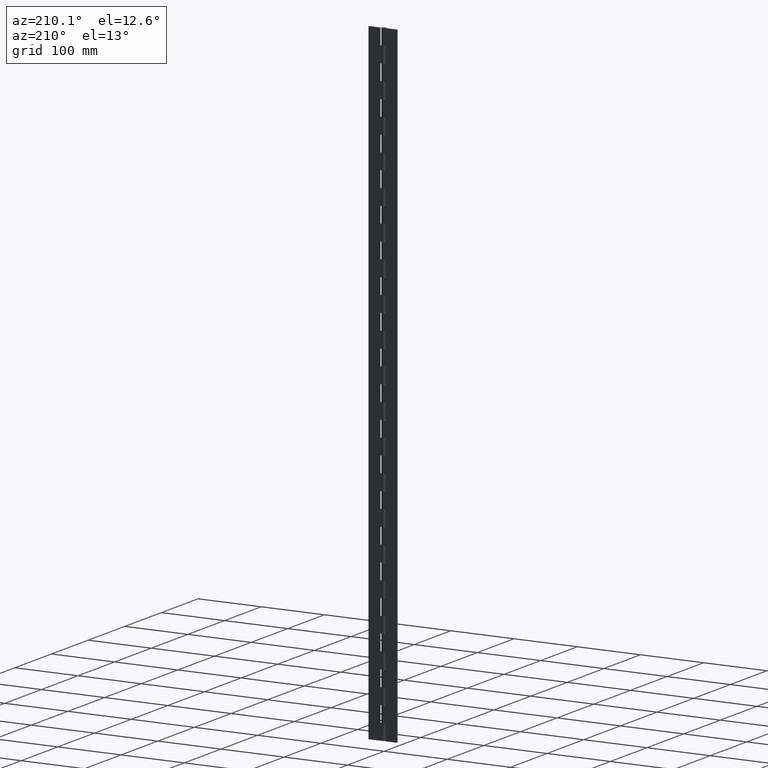
[diagram: clean part render]
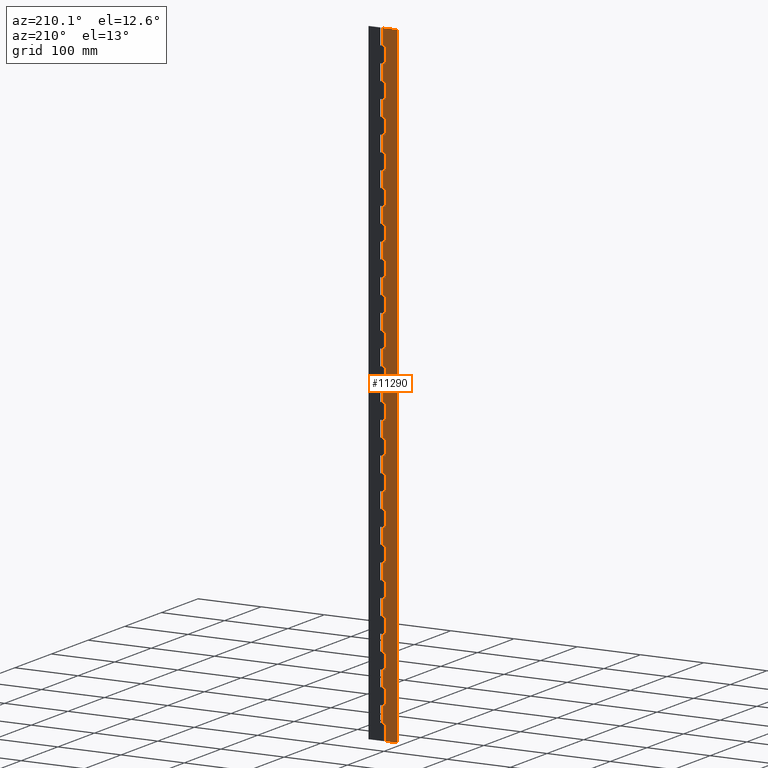
[diagram: same view with one face highlighted and labeled with its STEP entity id]
A machine part, auxiliary view. The second image highlights one B-rep face of the part: STEP entity #11290.
In plain terms, the highlighted face is a freeform B-spline surface patch.
Its self-contained STEP definition (entity closure, byte-faithful):
#5880=CARTESIAN_POINT('',(0.012942154702017,3.349975000001005,950.0));
#5881=VERTEX_POINT('',#5880);
#5901=CARTESIAN_POINT('',(-4.299995000000000,3.349975000001005,950.0));
#5902=VERTEX_POINT('',#5901);
#5903=CARTESIAN_POINT('',(-4.299995000000000,3.349975000001005,950.0));
#5904=CARTESIAN_POINT('',(0.012942154702017,3.349975000001005,950.0));
#5905=QUASI_UNIFORM_CURVE('',1,(#5903,#5904),.UNSPECIFIED.,.F.,.U.);
#5906=EDGE_CURVE('',#5902,#5881,#5905,.T.);
#5956=CARTESIAN_POINT('',(0.012942154702017,3.349975000001005,975.0));
#5957=VERTEX_POINT('',#5956);
#6014=CARTESIAN_POINT('',(-4.299995000000000,3.349975000001005,975.0));
#6015=VERTEX_POINT('',#6014);
#6021=CARTESIAN_POINT('',(0.012942154702017,3.349975000001005,975.0));
#6022=CARTESIAN_POINT('',(-4.299995000000000,3.349975000001005,975.0));
#6023=QUASI_UNIFORM_CURVE('',1,(#6021,#6022),.UNSPECIFIED.,.F.,.U.);
#6024=EDGE_CURVE('',#5957,#6015,#6023,.T.);
#6040=CARTESIAN_POINT('',(-4.299995000000000,3.349975000001005,975.0));
#6041=CARTESIAN_POINT('',(-4.299995000000000,3.349975000001005,950.0));
#6042=QUASI_UNIFORM_CURVE('',1,(#6040,#6041),.UNSPECIFIED.,.F.,.U.);
#6043=EDGE_CURVE('',#6015,#5902,#6042,.T.);
#6056=CARTESIAN_POINT('',(0.012942154702017,3.349975000001005,900.0));
#6057=VERTEX_POINT('',#6056);
#6077=CARTESIAN_POINT('',(-4.299995000000000,3.349975000001005,900.0));
#6078=VERTEX_POINT('',#6077);
#6079=CARTESIAN_POINT('',(-4.299995000000000,3.349975000001005,900.0));
#6080=CARTESIAN_POINT('',(0.012942154702017,3.349975000001005,900.0));
#6081=QUASI_UNIFORM_CURVE('',1,(#6079,#6080),.UNSPECIFIED.,.F.,.U.);
#6082=EDGE_CURVE('',#6078,#6057,#6081,.T.);
#6132=CARTESIAN_POINT('',(0.012942154702017,3.349975000001005,925.0));
#6133=VERTEX_POINT('',#6132);
#6190=CARTESIAN_POINT('',(-4.299995000000000,3.349975000001005,925.0));
#6191=VERTEX_POINT('',#6190);
#6197=CARTESIAN_POINT('',(0.012942154702017,3.349975000001005,925.0));
#6198=CARTESIAN_POINT('',(-4.299995000000000,3.349975000001005,925.0));
#6199=QUASI_UNIFORM_CURVE('',1,(#6197,#6198),.UNSPECIFIED.,.F.,.U.);
#6200=EDGE_CURVE('',#6133,#6191,#6199,.T.);
#6216=CARTESIAN_POINT('',(-4.299995000000000,3.349975000001005,925.0));
#6217=CARTESIAN_POINT('',(-4.299995000000000,3.349975000001005,900.0));
#6218=QUASI_UNIFORM_CURVE('',1,(#6216,#6217),.UNSPECIFIED.,.F.,.U.);
#6219=EDGE_CURVE('',#6191,#6078,#6218,.T.);
#6232=CARTESIAN_POINT('',(0.012942154702017,3.349975000001005,850.0));
#6233=VERTEX_POINT('',#6232);
#6253=CARTESIAN_POINT('',(-4.299995000000000,3.349975000001005,850.0));
#6254=VERTEX_POINT('',#6253);
#6255=CARTESIAN_POINT('',(-4.299995000000000,3.349975000001005,850.0));
#6256=CARTESIAN_POINT('',(0.012942154702017,3.349975000001005,850.0));
#6257=QUASI_UNIFORM_CURVE('',1,(#6255,#6256),.UNSPECIFIED.,.F.,.U.);
#6258=EDGE_CURVE('',#6254,#6233,#6257,.T.);
#6308=CARTESIAN_POINT('',(0.012942154702017,3.349975000001005,875.0));
#6309=VERTEX_POINT('',#6308);
#6366=CARTESIAN_POINT('',(-4.299995000000000,3.349975000001005,875.0));
#6367=VERTEX_POINT('',#6366);
#6373=CARTESIAN_POINT('',(0.012942154702017,3.349975000001005,875.0));
#6374=CARTESIAN_POINT('',(-4.299995000000000,3.349975000001005,875.0));
#6375=QUASI_UNIFORM_CURVE('',1,(#6373,#6374),.UNSPECIFIED.,.F.,.U.);
#6376=EDGE_CURVE('',#6309,#6367,#6375,.T.);
#6392=CARTESIAN_POINT('',(-4.299995000000000,3.349975000001005,875.0));
#6393=CARTESIAN_POINT('',(-4.299995000000000,3.349975000001005,850.0));
#6394=QUASI_UNIFORM_CURVE('',1,(#6392,#6393),.UNSPECIFIED.,.F.,.U.);
#6395=EDGE_CURVE('',#6367,#6254,#6394,.T.);
#6408=CARTESIAN_POINT('',(0.012942154702017,3.349975000001005,800.0));
#6409=VERTEX_POINT('',#6408);
#6429=CARTESIAN_POINT('',(-4.299995000000000,3.349975000001005,800.0));
#6430=VERTEX_POINT('',#6429);
#6431=CARTESIAN_POINT('',(-4.299995000000000,3.349975000001005,800.0));
#6432=CARTESIAN_POINT('',(0.012942154702017,3.349975000001005,800.0));
#6433=QUASI_UNIFORM_CURVE('',1,(#6431,#6432),.UNSPECIFIED.,.F.,.U.);
#6434=EDGE_CURVE('',#6430,#6409,#6433,.T.);
#6484=CARTESIAN_POINT('',(0.012942154702017,3.349975000001005,825.0));
#6485=VERTEX_POINT('',#6484);
#6542=CARTESIAN_POINT('',(-4.299995000000000,3.349975000001005,825.0));
#6543=VERTEX_POINT('',#6542);
#6549=CARTESIAN_POINT('',(0.012942154702017,3.349975000001005,825.0));
#6550=CARTESIAN_POINT('',(-4.299995000000000,3.349975000001005,825.0));
#6551=QUASI_UNIFORM_CURVE('',1,(#6549,#6550),.UNSPECIFIED.,.F.,.U.);
#6552=EDGE_CURVE('',#6485,#6543,#6551,.T.);
#6568=CARTESIAN_POINT('',(-4.299995000000000,3.349975000001005,825.0));
#6569=CARTESIAN_POINT('',(-4.299995000000000,3.349975000001005,800.0));
#6570=QUASI_UNIFORM_CURVE('',1,(#6568,#6569),.UNSPECIFIED.,.F.,.U.);
#6571=EDGE_CURVE('',#6543,#6430,#6570,.T.);
#6584=CARTESIAN_POINT('',(0.012942154702017,3.349975000001005,750.0));
#6585=VERTEX_POINT('',#6584);
#6605=CARTESIAN_POINT('',(-4.299995000000000,3.349975000001005,750.0));
#6606=VERTEX_POINT('',#6605);
#6607=CARTESIAN_POINT('',(-4.299995000000000,3.349975000001005,750.0));
#6608=CARTESIAN_POINT('',(0.012942154702017,3.349975000001005,750.0));
#6609=QUASI_UNIFORM_CURVE('',1,(#6607,#6608),.UNSPECIFIED.,.F.,.U.);
#6610=EDGE_CURVE('',#6606,#6585,#6609,.T.);
#6660=CARTESIAN_POINT('',(0.012942154702017,3.349975000001005,775.0));
#6661=VERTEX_POINT('',#6660);
#6718=CARTESIAN_POINT('',(-4.299995000000000,3.349975000001005,775.0));
#6719=VERTEX_POINT('',#6718);
#6725=CARTESIAN_POINT('',(0.012942154702017,3.349975000001005,775.0));
#6726=CARTESIAN_POINT('',(-4.299995000000000,3.349975000001005,775.0));
#6727=QUASI_UNIFORM_CURVE('',1,(#6725,#6726),.UNSPECIFIED.,.F.,.U.);
#6728=EDGE_CURVE('',#6661,#6719,#6727,.T.);
#6744=CARTESIAN_POINT('',(-4.299995000000000,3.349975000001005,775.0));
#6745=CARTESIAN_POINT('',(-4.299995000000000,3.349975000001005,750.0));
#6746=QUASI_UNIFORM_CURVE('',1,(#6744,#6745),.UNSPECIFIED.,.F.,.U.);
#6747=EDGE_CURVE('',#6719,#6606,#6746,.T.);
#6760=CARTESIAN_POINT('',(0.012942154702017,3.349975000001005,700.0));
#6761=VERTEX_POINT('',#6760);
#6781=CARTESIAN_POINT('',(-4.299995000000000,3.349975000001005,700.0));
#6782=VERTEX_POINT('',#6781);
#6783=CARTESIAN_POINT('',(-4.299995000000000,3.349975000001005,700.0));
#6784=CARTESIAN_POINT('',(0.012942154702017,3.349975000001005,700.0));
#6785=QUASI_UNIFORM_CURVE('',1,(#6783,#6784),.UNSPECIFIED.,.F.,.U.);
#6786=EDGE_CURVE('',#6782,#6761,#6785,.T.);
#6836=CARTESIAN_POINT('',(0.012942154702017,3.349975000001005,725.0));
#6837=VERTEX_POINT('',#6836);
#6894=CARTESIAN_POINT('',(-4.299995000000000,3.349975000001005,725.0));
#6895=VERTEX_POINT('',#6894);
#6901=CARTESIAN_POINT('',(0.012942154702017,3.349975000001005,725.0));
#6902=CARTESIAN_POINT('',(-4.299995000000000,3.349975000001005,725.0));
#6903=QUASI_UNIFORM_CURVE('',1,(#6901,#6902),.UNSPECIFIED.,.F.,.U.);
#6904=EDGE_CURVE('',#6837,#6895,#6903,.T.);
#6920=CARTESIAN_POINT('',(-4.299995000000000,3.349975000001005,725.0));
#6921=CARTESIAN_POINT('',(-4.299995000000000,3.349975000001005,700.0));
#6922=QUASI_UNIFORM_CURVE('',1,(#6920,#6921),.UNSPECIFIED.,.F.,.U.);
#6923=EDGE_CURVE('',#6895,#6782,#6922,.T.);
#6936=CARTESIAN_POINT('',(0.012942154702017,3.349975000001005,650.0));
#6937=VERTEX_POINT('',#6936);
#6957=CARTESIAN_POINT('',(-4.299995000000000,3.349975000001005,650.0));
#6958=VERTEX_POINT('',#6957);
#6959=CARTESIAN_POINT('',(-4.299995000000000,3.349975000001005,650.0));
#6960=CARTESIAN_POINT('',(0.012942154702017,3.349975000001005,650.0));
#6961=QUASI_UNIFORM_CURVE('',1,(#6959,#6960),.UNSPECIFIED.,.F.,.U.);
#6962=EDGE_CURVE('',#6958,#6937,#6961,.T.);
#7012=CARTESIAN_POINT('',(0.012942154702017,3.349975000001005,675.0));
#7013=VERTEX_POINT('',#7012);
#7070=CARTESIAN_POINT('',(-4.299995000000000,3.349975000001005,675.0));
#7071=VERTEX_POINT('',#7070);
#7077=CARTESIAN_POINT('',(0.012942154702017,3.349975000001005,675.0));
#7078=CARTESIAN_POINT('',(-4.299995000000000,3.349975000001005,675.0));
#7079=QUASI_UNIFORM_CURVE('',1,(#7077,#7078),.UNSPECIFIED.,.F.,.U.);
#7080=EDGE_CURVE('',#7013,#7071,#7079,.T.);
#7096=CARTESIAN_POINT('',(-4.299995000000000,3.349975000001005,675.0));
#7097=CARTESIAN_POINT('',(-4.299995000000000,3.349975000001005,650.0));
#7098=QUASI_UNIFORM_CURVE('',1,(#7096,#7097),.UNSPECIFIED.,.F.,.U.);
#7099=EDGE_CURVE('',#7071,#6958,#7098,.T.);
#7112=CARTESIAN_POINT('',(0.012942154702017,3.349975000001005,600.0));
#7113=VERTEX_POINT('',#7112);
#7133=CARTESIAN_POINT('',(-4.299995000000000,3.349975000001005,600.0));
#7134=VERTEX_POINT('',#7133);
#7135=CARTESIAN_POINT('',(-4.299995000000000,3.349975000001005,600.0));
#7136=CARTESIAN_POINT('',(0.012942154702017,3.349975000001005,600.0));
#7137=QUASI_UNIFORM_CURVE('',1,(#7135,#7136),.UNSPECIFIED.,.F.,.U.);
#7138=EDGE_CURVE('',#7134,#7113,#7137,.T.);
#7188=CARTESIAN_POINT('',(0.012942154702017,3.349975000001005,625.0));
#7189=VERTEX_POINT('',#7188);
#7246=CARTESIAN_POINT('',(-4.299995000000000,3.349975000001005,625.0));
#7247=VERTEX_POINT('',#7246);
#7253=CARTESIAN_POINT('',(0.012942154702017,3.349975000001005,625.0));
#7254=CARTESIAN_POINT('',(-4.299995000000000,3.349975000001005,625.0));
#7255=QUASI_UNIFORM_CURVE('',1,(#7253,#7254),.UNSPECIFIED.,.F.,.U.);
#7256=EDGE_CURVE('',#7189,#7247,#7255,.T.);
#7272=CARTESIAN_POINT('',(-4.299995000000000,3.349975000001005,625.0));
#7273=CARTESIAN_POINT('',(-4.299995000000000,3.349975000001005,600.0));
#7274=QUASI_UNIFORM_CURVE('',1,(#7272,#7273),.UNSPECIFIED.,.F.,.U.);
#7275=EDGE_CURVE('',#7247,#7134,#7274,.T.);
#7288=CARTESIAN_POINT('',(0.012942154702017,3.349975000001005,550.0));
#7289=VERTEX_POINT('',#7288);
#7309=CARTESIAN_POINT('',(-4.299995000000000,3.349975000001005,550.0));
#7310=VERTEX_POINT('',#7309);
#7311=CARTESIAN_POINT('',(-4.299995000000000,3.349975000001005,550.0));
#7312=CARTESIAN_POINT('',(0.012942154702017,3.349975000001005,550.0));
#7313=QUASI_UNIFORM_CURVE('',1,(#7311,#7312),.UNSPECIFIED.,.F.,.U.);
#7314=EDGE_CURVE('',#7310,#7289,#7313,.T.);
#7364=CARTESIAN_POINT('',(0.012942154702017,3.349975000001005,575.0));
#7365=VERTEX_POINT('',#7364);
#7422=CARTESIAN_POINT('',(-4.299995000000000,3.349975000001005,575.0));
#7423=VERTEX_POINT('',#7422);
#7429=CARTESIAN_POINT('',(0.012942154702017,3.349975000001005,575.0));
#7430=CARTESIAN_POINT('',(-4.299995000000000,3.349975000001005,575.0));
#7431=QUASI_UNIFORM_CURVE('',1,(#7429,#7430),.UNSPECIFIED.,.F.,.U.);
#7432=EDGE_CURVE('',#7365,#7423,#7431,.T.);
#7448=CARTESIAN_POINT('',(-4.299995000000000,3.349975000001005,575.0));
#7449=CARTESIAN_POINT('',(-4.299995000000000,3.349975000001005,550.0));
#7450=QUASI_UNIFORM_CURVE('',1,(#7448,#7449),.UNSPECIFIED.,.F.,.U.);
#7451=EDGE_CURVE('',#7423,#7310,#7450,.T.);
#7464=CARTESIAN_POINT('',(0.012942154702017,3.349975000001005,500.0));
#7465=VERTEX_POINT('',#7464);
#7485=CARTESIAN_POINT('',(-4.299995000000000,3.349975000001005,500.0));
#7486=VERTEX_POINT('',#7485);
#7487=CARTESIAN_POINT('',(-4.299995000000000,3.349975000001005,500.0));
#7488=CARTESIAN_POINT('',(0.012942154702017,3.349975000001005,500.0));
#7489=QUASI_UNIFORM_CURVE('',1,(#7487,#7488),.UNSPECIFIED.,.F.,.U.);
#7490=EDGE_CURVE('',#7486,#7465,#7489,.T.);
#7540=CARTESIAN_POINT('',(0.012942154702017,3.349975000001005,525.0));
#7541=VERTEX_POINT('',#7540);
#7598=CARTESIAN_POINT('',(-4.299995000000000,3.349975000001005,525.0));
#7599=VERTEX_POINT('',#7598);
#7605=CARTESIAN_POINT('',(0.012942154702017,3.349975000001005,525.0));
#7606=CARTESIAN_POINT('',(-4.299995000000000,3.349975000001005,525.0));
#7607=QUASI_UNIFORM_CURVE('',1,(#7605,#7606),.UNSPECIFIED.,.F.,.U.);
#7608=EDGE_CURVE('',#7541,#7599,#7607,.T.);
#7624=CARTESIAN_POINT('',(-4.299995000000000,3.349975000001005,525.0));
#7625=CARTESIAN_POINT('',(-4.299995000000000,3.349975000001005,500.0));
#7626=QUASI_UNIFORM_CURVE('',1,(#7624,#7625),.UNSPECIFIED.,.F.,.U.);
#7627=EDGE_CURVE('',#7599,#7486,#7626,.T.);
#7640=CARTESIAN_POINT('',(0.012942154702017,3.349975000001005,450.0));
#7641=VERTEX_POINT('',#7640);
#7661=CARTESIAN_POINT('',(-4.299995000000000,3.349975000001005,450.0));
#7662=VERTEX_POINT('',#7661);
#7663=CARTESIAN_POINT('',(-4.299995000000000,3.349975000001005,450.0));
#7664=CARTESIAN_POINT('',(0.012942154702017,3.349975000001005,450.0));
#7665=QUASI_UNIFORM_CURVE('',1,(#7663,#7664),.UNSPECIFIED.,.F.,.U.);
#7666=EDGE_CURVE('',#7662,#7641,#7665,.T.);
#7716=CARTESIAN_POINT('',(0.012942154702017,3.349975000001005,475.0));
#7717=VERTEX_POINT('',#7716);
#7774=CARTESIAN_POINT('',(-4.299995000000000,3.349975000001005,475.0));
#7775=VERTEX_POINT('',#7774);
#7781=CARTESIAN_POINT('',(0.012942154702017,3.349975000001005,475.0));
#7782=CARTESIAN_POINT('',(-4.299995000000000,3.349975000001005,475.0));
#7783=QUASI_UNIFORM_CURVE('',1,(#7781,#7782),.UNSPECIFIED.,.F.,.U.);
#7784=EDGE_CURVE('',#7717,#7775,#7783,.T.);
#7800=CARTESIAN_POINT('',(-4.299995000000000,3.349975000001005,475.0));
#7801=CARTESIAN_POINT('',(-4.299995000000000,3.349975000001005,450.0));
#7802=QUASI_UNIFORM_CURVE('',1,(#7800,#7801),.UNSPECIFIED.,.F.,.U.);
#7803=EDGE_CURVE('',#7775,#7662,#7802,.T.);
#7816=CARTESIAN_POINT('',(0.012942154702017,3.349975000001005,400.0));
#7817=VERTEX_POINT('',#7816);
#7837=CARTESIAN_POINT('',(-4.299995000000000,3.349975000001005,400.0));
#7838=VERTEX_POINT('',#7837);
#7839=CARTESIAN_POINT('',(-4.299995000000000,3.349975000001005,400.0));
#7840=CARTESIAN_POINT('',(0.012942154702017,3.349975000001005,400.0));
#7841=QUASI_UNIFORM_CURVE('',1,(#7839,#7840),.UNSPECIFIED.,.F.,.U.);
#7842=EDGE_CURVE('',#7838,#7817,#7841,.T.);
#7892=CARTESIAN_POINT('',(0.012942154702017,3.349975000001005,425.0));
#7893=VERTEX_POINT('',#7892);
#7950=CARTESIAN_POINT('',(-4.299995000000000,3.349975000001005,425.0));
#7951=VERTEX_POINT('',#7950);
#7957=CARTESIAN_POINT('',(0.012942154702017,3.349975000001005,425.0));
#7958=CARTESIAN_POINT('',(-4.299995000000000,3.349975000001005,425.0));
#7959=QUASI_UNIFORM_CURVE('',1,(#7957,#7958),.UNSPECIFIED.,.F.,.U.);
#7960=EDGE_CURVE('',#7893,#7951,#7959,.T.);
#7976=CARTESIAN_POINT('',(-4.299995000000000,3.349975000001005,425.0));
#7977=CARTESIAN_POINT('',(-4.299995000000000,3.349975000001005,400.0));
#7978=QUASI_UNIFORM_CURVE('',1,(#7976,#7977),.UNSPECIFIED.,.F.,.U.);
#7979=EDGE_CURVE('',#7951,#7838,#7978,.T.);
#7992=CARTESIAN_POINT('',(0.012942154702017,3.349975000001005,350.0));
#7993=VERTEX_POINT('',#7992);
#8013=CARTESIAN_POINT('',(-4.299995000000000,3.349975000001005,350.0));
#8014=VERTEX_POINT('',#8013);
#8015=CARTESIAN_POINT('',(-4.299995000000000,3.349975000001005,350.0));
#8016=CARTESIAN_POINT('',(0.012942154702017,3.349975000001005,350.0));
#8017=QUASI_UNIFORM_CURVE('',1,(#8015,#8016),.UNSPECIFIED.,.F.,.U.);
#8018=EDGE_CURVE('',#8014,#7993,#8017,.T.);
#8068=CARTESIAN_POINT('',(0.012942154702017,3.349975000001005,375.0));
#8069=VERTEX_POINT('',#8068);
#8126=CARTESIAN_POINT('',(-4.299995000000000,3.349975000001005,375.0));
#8127=VERTEX_POINT('',#8126);
#8133=CARTESIAN_POINT('',(0.012942154702017,3.349975000001005,375.0));
#8134=CARTESIAN_POINT('',(-4.299995000000000,3.349975000001005,375.0));
#8135=QUASI_UNIFORM_CURVE('',1,(#8133,#8134),.UNSPECIFIED.,.F.,.U.);
#8136=EDGE_CURVE('',#8069,#8127,#8135,.T.);
#8152=CARTESIAN_POINT('',(-4.299995000000000,3.349975000001005,375.0));
#8153=CARTESIAN_POINT('',(-4.299995000000000,3.349975000001005,350.0));
#8154=QUASI_UNIFORM_CURVE('',1,(#8152,#8153),.UNSPECIFIED.,.F.,.U.);
#8155=EDGE_CURVE('',#8127,#8014,#8154,.T.);
#8168=CARTESIAN_POINT('',(0.012942154702017,3.349975000001005,300.0));
#8169=VERTEX_POINT('',#8168);
#8189=CARTESIAN_POINT('',(-4.299995000000000,3.349975000001005,300.0));
#8190=VERTEX_POINT('',#8189);
#8191=CARTESIAN_POINT('',(-4.299995000000000,3.349975000001005,300.0));
#8192=CARTESIAN_POINT('',(0.012942154702017,3.349975000001005,300.0));
#8193=QUASI_UNIFORM_CURVE('',1,(#8191,#8192),.UNSPECIFIED.,.F.,.U.);
#8194=EDGE_CURVE('',#8190,#8169,#8193,.T.);
#8244=CARTESIAN_POINT('',(0.012942154702017,3.349975000001005,325.0));
#8245=VERTEX_POINT('',#8244);
#8302=CARTESIAN_POINT('',(-4.299995000000000,3.349975000001005,325.0));
#8303=VERTEX_POINT('',#8302);
#8309=CARTESIAN_POINT('',(0.012942154702017,3.349975000001005,325.0));
#8310=CARTESIAN_POINT('',(-4.299995000000000,3.349975000001005,325.0));
#8311=QUASI_UNIFORM_CURVE('',1,(#8309,#8310),.UNSPECIFIED.,.F.,.U.);
#8312=EDGE_CURVE('',#8245,#8303,#8311,.T.);
#8328=CARTESIAN_POINT('',(-4.299995000000000,3.349975000001005,325.0));
#8329=CARTESIAN_POINT('',(-4.299995000000000,3.349975000001005,300.0));
#8330=QUASI_UNIFORM_CURVE('',1,(#8328,#8329),.UNSPECIFIED.,.F.,.U.);
#8331=EDGE_CURVE('',#8303,#8190,#8330,.T.);
#8344=CARTESIAN_POINT('',(0.012942154702017,3.349975000001005,250.0));
#8345=VERTEX_POINT('',#8344);
#8365=CARTESIAN_POINT('',(-4.299995000000000,3.349975000001005,250.0));
#8366=VERTEX_POINT('',#8365);
#8367=CARTESIAN_POINT('',(-4.299995000000000,3.349975000001005,250.0));
#8368=CARTESIAN_POINT('',(0.012942154702017,3.349975000001005,250.0));
#8369=QUASI_UNIFORM_CURVE('',1,(#8367,#8368),.UNSPECIFIED.,.F.,.U.);
#8370=EDGE_CURVE('',#8366,#8345,#8369,.T.);
#8420=CARTESIAN_POINT('',(0.012942154702017,3.349975000001005,275.0));
#8421=VERTEX_POINT('',#8420);
#8478=CARTESIAN_POINT('',(-4.299995000000000,3.349975000001005,275.0));
#8479=VERTEX_POINT('',#8478);
#8485=CARTESIAN_POINT('',(0.012942154702017,3.349975000001005,275.0));
#8486=CARTESIAN_POINT('',(-4.299995000000000,3.349975000001005,275.0));
#8487=QUASI_UNIFORM_CURVE('',1,(#8485,#8486),.UNSPECIFIED.,.F.,.U.);
#8488=EDGE_CURVE('',#8421,#8479,#8487,.T.);
#8504=CARTESIAN_POINT('',(-4.299995000000000,3.349975000001005,275.0));
#8505=CARTESIAN_POINT('',(-4.299995000000000,3.349975000001005,250.0));
#8506=QUASI_UNIFORM_CURVE('',1,(#8504,#8505),.UNSPECIFIED.,.F.,.U.);
#8507=EDGE_CURVE('',#8479,#8366,#8506,.T.);
#8520=CARTESIAN_POINT('',(0.012942154702017,3.349975000001005,200.0));
#8521=VERTEX_POINT('',#8520);
#8541=CARTESIAN_POINT('',(-4.299995000000000,3.349975000001005,200.0));
#8542=VERTEX_POINT('',#8541);
#8543=CARTESIAN_POINT('',(-4.299995000000000,3.349975000001005,200.0));
#8544=CARTESIAN_POINT('',(0.012942154702017,3.349975000001005,200.0));
#8545=QUASI_UNIFORM_CURVE('',1,(#8543,#8544),.UNSPECIFIED.,.F.,.U.);
#8546=EDGE_CURVE('',#8542,#8521,#8545,.T.);
#8596=CARTESIAN_POINT('',(0.012942154702017,3.349975000001005,225.0));
#8597=VERTEX_POINT('',#8596);
#8654=CARTESIAN_POINT('',(-4.299995000000000,3.349975000001005,225.0));
#8655=VERTEX_POINT('',#8654);
#8661=CARTESIAN_POINT('',(0.012942154702017,3.349975000001005,225.0));
#8662=CARTESIAN_POINT('',(-4.299995000000000,3.349975000001005,225.0));
#8663=QUASI_UNIFORM_CURVE('',1,(#8661,#8662),.UNSPECIFIED.,.F.,.U.);
#8664=EDGE_CURVE('',#8597,#8655,#8663,.T.);
#8680=CARTESIAN_POINT('',(-4.299995000000000,3.349975000001005,225.0));
#8681=CARTESIAN_POINT('',(-4.299995000000000,3.349975000001005,200.0));
#8682=QUASI_UNIFORM_CURVE('',1,(#8680,#8681),.UNSPECIFIED.,.F.,.U.);
#8683=EDGE_CURVE('',#8655,#8542,#8682,.T.);
#8696=CARTESIAN_POINT('',(0.012942154702017,3.349975000001005,150.0));
#8697=VERTEX_POINT('',#8696);
#8717=CARTESIAN_POINT('',(-4.299995000000000,3.349975000001005,150.0));
#8718=VERTEX_POINT('',#8717);
#8719=CARTESIAN_POINT('',(-4.299995000000000,3.349975000001005,150.0));
#8720=CARTESIAN_POINT('',(0.012942154702017,3.349975000001005,150.0));
#8721=QUASI_UNIFORM_CURVE('',1,(#8719,#8720),.UNSPECIFIED.,.F.,.U.);
#8722=EDGE_CURVE('',#8718,#8697,#8721,.T.);
#8772=CARTESIAN_POINT('',(0.012942154702017,3.349975000001005,175.0));
#8773=VERTEX_POINT('',#8772);
#8830=CARTESIAN_POINT('',(-4.299995000000000,3.349975000001005,175.0));
#8831=VERTEX_POINT('',#8830);
#8837=CARTESIAN_POINT('',(0.012942154702017,3.349975000001005,175.0));
#8838=CARTESIAN_POINT('',(-4.299995000000000,3.349975000001005,175.0));
#8839=QUASI_UNIFORM_CURVE('',1,(#8837,#8838),.UNSPECIFIED.,.F.,.U.);
#8840=EDGE_CURVE('',#8773,#8831,#8839,.T.);
#8856=CARTESIAN_POINT('',(-4.299995000000000,3.349975000001005,175.0));
#8857=CARTESIAN_POINT('',(-4.299995000000000,3.349975000001005,150.0));
#8858=QUASI_UNIFORM_CURVE('',1,(#8856,#8857),.UNSPECIFIED.,.F.,.U.);
#8859=EDGE_CURVE('',#8831,#8718,#8858,.T.);
#8872=CARTESIAN_POINT('',(0.012942154702017,3.349975000001005,100.0));
#8873=VERTEX_POINT('',#8872);
#8893=CARTESIAN_POINT('',(-4.299995000000000,3.349975000001005,100.0));
#8894=VERTEX_POINT('',#8893);
#8895=CARTESIAN_POINT('',(-4.299995000000000,3.349975000001005,100.0));
#8896=CARTESIAN_POINT('',(0.012942154702017,3.349975000001005,100.0));
#8897=QUASI_UNIFORM_CURVE('',1,(#8895,#8896),.UNSPECIFIED.,.F.,.U.);
#8898=EDGE_CURVE('',#8894,#8873,#8897,.T.);
#8948=CARTESIAN_POINT('',(0.012942154702017,3.349975000001005,125.0));
#8949=VERTEX_POINT('',#8948);
#9006=CARTESIAN_POINT('',(-4.299995000000000,3.349975000001005,125.0));
#9007=VERTEX_POINT('',#9006);
#9013=CARTESIAN_POINT('',(0.012942154702017,3.349975000001005,125.0));
#9014=CARTESIAN_POINT('',(-4.299995000000000,3.349975000001005,125.0));
#9015=QUASI_UNIFORM_CURVE('',1,(#9013,#9014),.UNSPECIFIED.,.F.,.U.);
#9016=EDGE_CURVE('',#8949,#9007,#9015,.T.);
#9032=CARTESIAN_POINT('',(-4.299995000000000,3.349975000001005,125.0));
#9033=CARTESIAN_POINT('',(-4.299995000000000,3.349975000001005,100.0));
#9034=QUASI_UNIFORM_CURVE('',1,(#9032,#9033),.UNSPECIFIED.,.F.,.U.);
#9035=EDGE_CURVE('',#9007,#8894,#9034,.T.);
#9048=CARTESIAN_POINT('',(0.012942154702017,3.349975000001005,50.0));
#9049=VERTEX_POINT('',#9048);
#9069=CARTESIAN_POINT('',(-4.299995000000000,3.349975000001005,50.0));
#9070=VERTEX_POINT('',#9069);
#9071=CARTESIAN_POINT('',(-4.299995000000000,3.349975000001005,50.0));
#9072=CARTESIAN_POINT('',(0.012942154702017,3.349975000001005,50.0));
#9073=QUASI_UNIFORM_CURVE('',1,(#9071,#9072),.UNSPECIFIED.,.F.,.U.);
#9074=EDGE_CURVE('',#9070,#9049,#9073,.T.);
#9124=CARTESIAN_POINT('',(0.012942154702017,3.349975000001005,75.0));
#9125=VERTEX_POINT('',#9124);
#9182=CARTESIAN_POINT('',(-4.299995000000000,3.349975000001005,75.0));
#9183=VERTEX_POINT('',#9182);
#9189=CARTESIAN_POINT('',(0.012942154702017,3.349975000001005,75.0));
#9190=CARTESIAN_POINT('',(-4.299995000000000,3.349975000001005,75.0));
#9191=QUASI_UNIFORM_CURVE('',1,(#9189,#9190),.UNSPECIFIED.,.F.,.U.);
#9192=EDGE_CURVE('',#9125,#9183,#9191,.T.);
#9208=CARTESIAN_POINT('',(-4.299995000000000,3.349975000001005,75.0));
#9209=CARTESIAN_POINT('',(-4.299995000000000,3.349975000001005,50.0));
#9210=QUASI_UNIFORM_CURVE('',1,(#9208,#9209),.UNSPECIFIED.,.F.,.U.);
#9211=EDGE_CURVE('',#9183,#9070,#9210,.T.);
#9231=CARTESIAN_POINT('',(-4.299995000000000,3.349975000001005,0.0));
#9232=VERTEX_POINT('',#9231);
#9238=CARTESIAN_POINT('',(-4.299995000000000,3.349975000001005,25.0));
#9239=VERTEX_POINT('',#9238);
#9240=CARTESIAN_POINT('',(-4.299995000000000,3.349975000001005,25.0));
#9241=CARTESIAN_POINT('',(-4.299995000000000,3.349975000001005,0.0));
#9242=QUASI_UNIFORM_CURVE('',1,(#9240,#9241),.UNSPECIFIED.,.F.,.U.);
#9243=EDGE_CURVE('',#9239,#9232,#9242,.T.);
#9258=CARTESIAN_POINT('',(0.012942154702017,3.349975000001005,25.0));
#9259=VERTEX_POINT('',#9258);
#9315=CARTESIAN_POINT('',(0.012942154702017,3.349975000001005,25.0));
#9316=CARTESIAN_POINT('',(-4.299995000000000,3.349975000001005,25.0));
#9317=QUASI_UNIFORM_CURVE('',1,(#9315,#9316),.UNSPECIFIED.,.F.,.U.);
#9318=EDGE_CURVE('',#9259,#9239,#9317,.T.);
#9330=CARTESIAN_POINT('',(0.012942154702017,3.349975000000995,999.999977999999940));
#9331=VERTEX_POINT('',#9330);
#9351=CARTESIAN_POINT('',(-22.500000000000000,3.349975000000995,999.999977999999940));
#9352=VERTEX_POINT('',#9351);
#9353=CARTESIAN_POINT('',(0.012942154702017,3.349975000000995,999.999977999999940));
#9354=CARTESIAN_POINT('',(-22.500000000000000,3.349975000000995,999.999977999999940));
#9355=QUASI_UNIFORM_CURVE('',1,(#9353,#9354),.UNSPECIFIED.,.F.,.U.);
#9356=EDGE_CURVE('',#9331,#9352,#9355,.T.);
#9406=CARTESIAN_POINT('',(-22.500000000000000,3.349975000000995,0.0));
#9407=VERTEX_POINT('',#9406);
#9421=CARTESIAN_POINT('',(-22.500000000000000,3.349975000000995,999.999977999999940));
#9422=CARTESIAN_POINT('',(-22.500000000000000,3.349975000000995,0.0));
#9423=QUASI_UNIFORM_CURVE('',1,(#9421,#9422),.UNSPECIFIED.,.F.,.U.);
#9424=EDGE_CURVE('',#9352,#9407,#9423,.T.);
#9441=CARTESIAN_POINT('',(-4.299995000000000,3.349975000001005,0.0));
#9442=CARTESIAN_POINT('',(-22.500000000000000,3.349975000000995,0.0));
#9443=QUASI_UNIFORM_CURVE('',1,(#9441,#9442),.UNSPECIFIED.,.F.,.U.);
#9444=EDGE_CURVE('',#9232,#9407,#9443,.T.);
#9527=CARTESIAN_POINT('',(0.012942154702017,3.349975000001005,50.0));
#9528=CARTESIAN_POINT('',(0.012942154702017,3.349975000001005,25.0));
#9529=QUASI_UNIFORM_CURVE('',1,(#9527,#9528),.UNSPECIFIED.,.F.,.U.);
#9530=EDGE_CURVE('',#9049,#9259,#9529,.T.);
#9613=CARTESIAN_POINT('',(0.012942154702017,3.349975000001005,100.0));
#9614=CARTESIAN_POINT('',(0.012942154702017,3.349975000001005,75.0));
#9615=QUASI_UNIFORM_CURVE('',1,(#9613,#9614),.UNSPECIFIED.,.F.,.U.);
#9616=EDGE_CURVE('',#8873,#9125,#9615,.T.);
#9699=CARTESIAN_POINT('',(0.012942154702017,3.349975000001005,150.0));
#9700=CARTESIAN_POINT('',(0.012942154702017,3.349975000001005,125.0));
#9701=QUASI_UNIFORM_CURVE('',1,(#9699,#9700),.UNSPECIFIED.,.F.,.U.);
#9702=EDGE_CURVE('',#8697,#8949,#9701,.T.);
#9785=CARTESIAN_POINT('',(0.012942154702017,3.349975000001005,200.0));
#9786=CARTESIAN_POINT('',(0.012942154702017,3.349975000001005,175.0));
#9787=QUASI_UNIFORM_CURVE('',1,(#9785,#9786),.UNSPECIFIED.,.F.,.U.);
#9788=EDGE_CURVE('',#8521,#8773,#9787,.T.);
#9871=CARTESIAN_POINT('',(0.012942154702017,3.349975000001005,250.0));
#9872=CARTESIAN_POINT('',(0.012942154702017,3.349975000001005,225.0));
#9873=QUASI_UNIFORM_CURVE('',1,(#9871,#9872),.UNSPECIFIED.,.F.,.U.);
#9874=EDGE_CURVE('',#8345,#8597,#9873,.T.);
#9957=CARTESIAN_POINT('',(0.012942154702017,3.349975000001005,300.0));
#9958=CARTESIAN_POINT('',(0.012942154702017,3.349975000001005,275.0));
#9959=QUASI_UNIFORM_CURVE('',1,(#9957,#9958),.UNSPECIFIED.,.F.,.U.);
#9960=EDGE_CURVE('',#8169,#8421,#9959,.T.);
#10043=CARTESIAN_POINT('',(0.012942154702017,3.349975000001005,350.0));
#10044=CARTESIAN_POINT('',(0.012942154702017,3.349975000001005,325.0));
#10045=QUASI_UNIFORM_CURVE('',1,(#10043,#10044),.UNSPECIFIED.,.F.,.U.);
#10046=EDGE_CURVE('',#7993,#8245,#10045,.T.);
#10129=CARTESIAN_POINT('',(0.012942154702017,3.349975000001005,400.0));
#10130=CARTESIAN_POINT('',(0.012942154702017,3.349975000001005,375.0));
#10131=QUASI_UNIFORM_CURVE('',1,(#10129,#10130),.UNSPECIFIED.,.F.,.U.);
#10132=EDGE_CURVE('',#7817,#8069,#10131,.T.);
#10215=CARTESIAN_POINT('',(0.012942154702017,3.349975000001005,450.0));
#10216=CARTESIAN_POINT('',(0.012942154702017,3.349975000001005,425.0));
#10217=QUASI_UNIFORM_CURVE('',1,(#10215,#10216),.UNSPECIFIED.,.F.,.U.);
#10218=EDGE_CURVE('',#7641,#7893,#10217,.T.);
#10301=CARTESIAN_POINT('',(0.012942154702017,3.349975000001005,500.0));
#10302=CARTESIAN_POINT('',(0.012942154702017,3.349975000001005,475.0));
#10303=QUASI_UNIFORM_CURVE('',1,(#10301,#10302),.UNSPECIFIED.,.F.,.U.);
#10304=EDGE_CURVE('',#7465,#7717,#10303,.T.);
#10387=CARTESIAN_POINT('',(0.012942154702017,3.349975000001005,550.0));
#10388=CARTESIAN_POINT('',(0.012942154702017,3.349975000001005,525.0));
#10389=QUASI_UNIFORM_CURVE('',1,(#10387,#10388),.UNSPECIFIED.,.F.,.U.);
#10390=EDGE_CURVE('',#7289,#7541,#10389,.T.);
#10473=CARTESIAN_POINT('',(0.012942154702017,3.349975000001005,600.0));
#10474=CARTESIAN_POINT('',(0.012942154702017,3.349975000001005,575.0));
#10475=QUASI_UNIFORM_CURVE('',1,(#10473,#10474),.UNSPECIFIED.,.F.,.U.);
#10476=EDGE_CURVE('',#7113,#7365,#10475,.T.);
#10559=CARTESIAN_POINT('',(0.012942154702017,3.349975000001005,650.0));
#10560=CARTESIAN_POINT('',(0.012942154702017,3.349975000001005,625.0));
#10561=QUASI_UNIFORM_CURVE('',1,(#10559,#10560),.UNSPECIFIED.,.F.,.U.);
#10562=EDGE_CURVE('',#6937,#7189,#10561,.T.);
#10645=CARTESIAN_POINT('',(0.012942154702017,3.349975000001005,700.0));
#10646=CARTESIAN_POINT('',(0.012942154702017,3.349975000001005,675.0));
#10647=QUASI_UNIFORM_CURVE('',1,(#10645,#10646),.UNSPECIFIED.,.F.,.U.);
#10648=EDGE_CURVE('',#6761,#7013,#10647,.T.);
#10731=CARTESIAN_POINT('',(0.012942154702017,3.349975000001005,750.0));
#10732=CARTESIAN_POINT('',(0.012942154702017,3.349975000001005,725.0));
#10733=QUASI_UNIFORM_CURVE('',1,(#10731,#10732),.UNSPECIFIED.,.F.,.U.);
#10734=EDGE_CURVE('',#6585,#6837,#10733,.T.);
#10817=CARTESIAN_POINT('',(0.012942154702017,3.349975000001005,800.0));
#10818=CARTESIAN_POINT('',(0.012942154702017,3.349975000001005,775.0));
#10819=QUASI_UNIFORM_CURVE('',1,(#10817,#10818),.UNSPECIFIED.,.F.,.U.);
#10820=EDGE_CURVE('',#6409,#6661,#10819,.T.);
#10903=CARTESIAN_POINT('',(0.012942154702017,3.349975000001005,850.0));
#10904=CARTESIAN_POINT('',(0.012942154702017,3.349975000001005,825.0));
#10905=QUASI_UNIFORM_CURVE('',1,(#10903,#10904),.UNSPECIFIED.,.F.,.U.);
#10906=EDGE_CURVE('',#6233,#6485,#10905,.T.);
#10989=CARTESIAN_POINT('',(0.012942154702017,3.349975000001005,900.0));
#10990=CARTESIAN_POINT('',(0.012942154702017,3.349975000001005,875.0));
#10991=QUASI_UNIFORM_CURVE('',1,(#10989,#10990),.UNSPECIFIED.,.F.,.U.);
#10992=EDGE_CURVE('',#6057,#6309,#10991,.T.);
#11193=CARTESIAN_POINT('',(-23.624521416992920,3.349975000000995,1049.950003124759000));
#11194=CARTESIAN_POINT('',(-23.624521416992920,3.349975000000995,-49.950025124758888));
#11195=CARTESIAN_POINT('',(1.137464175539096,3.349975000000995,1049.950003124759000));
#11196=CARTESIAN_POINT('',(1.137464175539096,3.349975000000995,-49.950025124758888));
#11197=B_SPLINE_SURFACE_WITH_KNOTS('',1,1,((#11193,#11195),(#11194,#11196)),.UNSPECIFIED.,.F.,.F.,.U.,(2,2),(2,2),(0.0,1099.900028249518100),(0.0,24.761985592532021),.UNSPECIFIED.);
#11198=ORIENTED_EDGE('',*,*,#6024,.T.);
#11199=ORIENTED_EDGE('',*,*,#6043,.T.);
#11200=ORIENTED_EDGE('',*,*,#5906,.T.);
#11201=CARTESIAN_POINT('',(0.012942154702017,3.349975000001005,950.0));
#11202=CARTESIAN_POINT('',(0.012942154702017,3.349975000001005,925.0));
#11203=QUASI_UNIFORM_CURVE('',1,(#11201,#11202),.UNSPECIFIED.,.F.,.U.);
#11204=EDGE_CURVE('',#5881,#6133,#11203,.T.);
#11205=ORIENTED_EDGE('',*,*,#11204,.T.);
#11206=ORIENTED_EDGE('',*,*,#6200,.T.);
#11207=ORIENTED_EDGE('',*,*,#6219,.T.);
#11208=ORIENTED_EDGE('',*,*,#6082,.T.);
#11209=ORIENTED_EDGE('',*,*,#10992,.T.);
#11210=ORIENTED_EDGE('',*,*,#6376,.T.);
#11211=ORIENTED_EDGE('',*,*,#6395,.T.);
#11212=ORIENTED_EDGE('',*,*,#6258,.T.);
#11213=ORIENTED_EDGE('',*,*,#10906,.T.);
#11214=ORIENTED_EDGE('',*,*,#6552,.T.);
#11215=ORIENTED_EDGE('',*,*,#6571,.T.);
#11216=ORIENTED_EDGE('',*,*,#6434,.T.);
#11217=ORIENTED_EDGE('',*,*,#10820,.T.);
#11218=ORIENTED_EDGE('',*,*,#6728,.T.);
#11219=ORIENTED_EDGE('',*,*,#6747,.T.);
#11220=ORIENTED_EDGE('',*,*,#6610,.T.);
#11221=ORIENTED_EDGE('',*,*,#10734,.T.);
#11222=ORIENTED_EDGE('',*,*,#6904,.T.);
#11223=ORIENTED_EDGE('',*,*,#6923,.T.);
#11224=ORIENTED_EDGE('',*,*,#6786,.T.);
#11225=ORIENTED_EDGE('',*,*,#10648,.T.);
#11226=ORIENTED_EDGE('',*,*,#7080,.T.);
#11227=ORIENTED_EDGE('',*,*,#7099,.T.);
#11228=ORIENTED_EDGE('',*,*,#6962,.T.);
#11229=ORIENTED_EDGE('',*,*,#10562,.T.);
#11230=ORIENTED_EDGE('',*,*,#7256,.T.);
#11231=ORIENTED_EDGE('',*,*,#7275,.T.);
#11232=ORIENTED_EDGE('',*,*,#7138,.T.);
#11233=ORIENTED_EDGE('',*,*,#10476,.T.);
#11234=ORIENTED_EDGE('',*,*,#7432,.T.);
#11235=ORIENTED_EDGE('',*,*,#7451,.T.);
#11236=ORIENTED_EDGE('',*,*,#7314,.T.);
#11237=ORIENTED_EDGE('',*,*,#10390,.T.);
#11238=ORIENTED_EDGE('',*,*,#7608,.T.);
#11239=ORIENTED_EDGE('',*,*,#7627,.T.);
#11240=ORIENTED_EDGE('',*,*,#7490,.T.);
#11241=ORIENTED_EDGE('',*,*,#10304,.T.);
#11242=ORIENTED_EDGE('',*,*,#7784,.T.);
#11243=ORIENTED_EDGE('',*,*,#7803,.T.);
#11244=ORIENTED_EDGE('',*,*,#7666,.T.);
#11245=ORIENTED_EDGE('',*,*,#10218,.T.);
#11246=ORIENTED_EDGE('',*,*,#7960,.T.);
#11247=ORIENTED_EDGE('',*,*,#7979,.T.);
#11248=ORIENTED_EDGE('',*,*,#7842,.T.);
#11249=ORIENTED_EDGE('',*,*,#10132,.T.);
#11250=ORIENTED_EDGE('',*,*,#8136,.T.);
#11251=ORIENTED_EDGE('',*,*,#8155,.T.);
#11252=ORIENTED_EDGE('',*,*,#8018,.T.);
#11253=ORIENTED_EDGE('',*,*,#10046,.T.);
#11254=ORIENTED_EDGE('',*,*,#8312,.T.);
#11255=ORIENTED_EDGE('',*,*,#8331,.T.);
#11256=ORIENTED_EDGE('',*,*,#8194,.T.);
#11257=ORIENTED_EDGE('',*,*,#9960,.T.);
#11258=ORIENTED_EDGE('',*,*,#8488,.T.);
#11259=ORIENTED_EDGE('',*,*,#8507,.T.);
#11260=ORIENTED_EDGE('',*,*,#8370,.T.);
#11261=ORIENTED_EDGE('',*,*,#9874,.T.);
#11262=ORIENTED_EDGE('',*,*,#8664,.T.);
#11263=ORIENTED_EDGE('',*,*,#8683,.T.);
#11264=ORIENTED_EDGE('',*,*,#8546,.T.);
#11265=ORIENTED_EDGE('',*,*,#9788,.T.);
#11266=ORIENTED_EDGE('',*,*,#8840,.T.);
#11267=ORIENTED_EDGE('',*,*,#8859,.T.);
#11268=ORIENTED_EDGE('',*,*,#8722,.T.);
#11269=ORIENTED_EDGE('',*,*,#9702,.T.);
#11270=ORIENTED_EDGE('',*,*,#9016,.T.);
#11271=ORIENTED_EDGE('',*,*,#9035,.T.);
#11272=ORIENTED_EDGE('',*,*,#8898,.T.);
#11273=ORIENTED_EDGE('',*,*,#9616,.T.);
#11274=ORIENTED_EDGE('',*,*,#9192,.T.);
#11275=ORIENTED_EDGE('',*,*,#9211,.T.);
#11276=ORIENTED_EDGE('',*,*,#9074,.T.);
#11277=ORIENTED_EDGE('',*,*,#9530,.T.);
#11278=ORIENTED_EDGE('',*,*,#9318,.T.);
#11279=ORIENTED_EDGE('',*,*,#9243,.T.);
#11280=ORIENTED_EDGE('',*,*,#9444,.T.);
#11281=ORIENTED_EDGE('',*,*,#9424,.F.);
#11282=ORIENTED_EDGE('',*,*,#9356,.F.);
#11283=CARTESIAN_POINT('',(0.012942154702017,3.349975000000995,999.999977999999940));
#11284=CARTESIAN_POINT('',(0.012942154702017,3.349975000001005,975.0));
#11285=QUASI_UNIFORM_CURVE('',1,(#11283,#11284),.UNSPECIFIED.,.F.,.U.);
#11286=EDGE_CURVE('',#9331,#5957,#11285,.T.);
#11287=ORIENTED_EDGE('',*,*,#11286,.T.);
#11288=EDGE_LOOP('',(#11198,#11199,#11200,#11205,#11206,#11207,#11208,#11209,#11210,#11211,#11212,#11213,#11214,#11215,#11216,#11217,#11218,#11219,#11220,#11221,#11222,#11223,#11224,#11225,#11226,#11227,#11228,#11229,#11230,#11231,#11232,#11233,#11234,#11235,#11236,#11237,#11238,#11239,#11240,#11241,#11242,#11243,#11244,#11245,#11246,#11247,#11248,#11249,#11250,#11251,#11252,#11253,#11254,#11255,#11256,#11257,#11258,#11259,#11260,#11261,#11262,#11263,#11264,#11265,#11266,#11267,#11268,#11269,#11270,#11271,#11272,#11273,#11274,#11275,#11276,#11277,#11278,#11279,#11280,#11281,#11282,#11287));
#11289=FACE_OUTER_BOUND('',#11288,.T.);
#11290=ADVANCED_FACE('',(#11289),#11197,.F.);